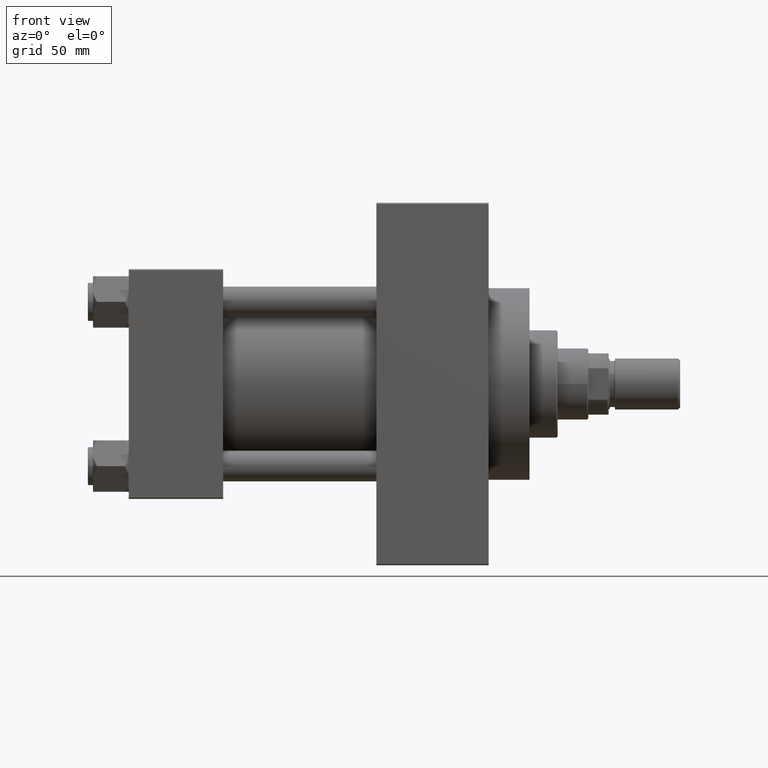
[diagram: clean part render]
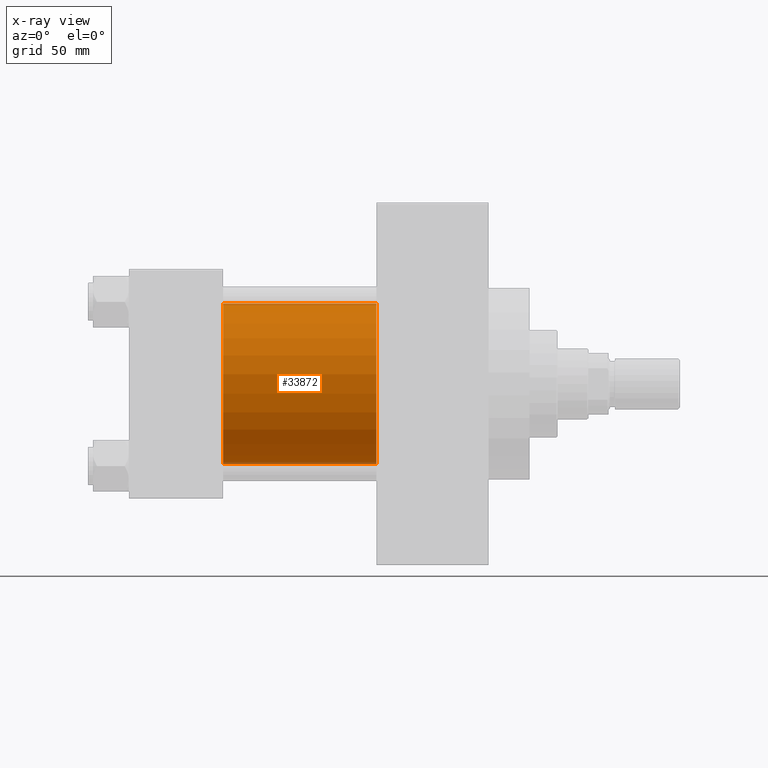
[diagram: x-ray — body ghosted, one internal face saturated and labeled with its STEP entity id]
A machine part, front view, then the same camera in x-ray: the body is ghosted and one INTERNAL B-rep face — a face not visible from any outside direction — is saturated and labeled: STEP entity #33872.
In plain terms, the highlighted cylindrical surface (partial cylindrical patch) has radius 31.5 mm, axis along (-1, -0, -0).
Its self-contained STEP definition (entity closure, byte-faithful):
#90 = CARTESIAN_POINT ( 'NONE',  ( 37.00000000000000000, 1.255552203348951850E-15, -31.50000000000000000 ) ) ;
#1311 = CIRCLE ( 'NONE', #8227, 31.50000000000000000 ) ;
#1337 = DIRECTION ( 'NONE',  ( 1.000000000000000000, 0.000000000000000000, 0.000000000000000000 ) ) ;
#1867 = EDGE_CURVE ( 'NONE', #9177, #2190, #17168, .T. ) ;
#2190 = VERTEX_POINT ( 'NONE', #31808 ) ;
#2488 = CARTESIAN_POINT ( 'NONE',  ( 97.00000000000000000, -2.602085213965210642E-15, 31.50000000000000000 ) ) ;
#2682 = DIRECTION ( 'NONE',  ( -1.000000000000000000, -0.000000000000000000, -0.000000000000000000 ) ) ;
#5655 = CARTESIAN_POINT ( 'NONE',  ( 97.00000000000000000, -2.602085213965210642E-15, 0.000000000000000000 ) ) ;
#6573 = EDGE_LOOP ( 'NONE', ( #9079, #9565, #32067, #25367 ) ) ;
#8227 = AXIS2_PLACEMENT_3D ( 'NONE', #34356, #1337, #38209 ) ;
#8315 = CYLINDRICAL_SURFACE ( 'NONE', #15411, 31.50000000000000000 ) ;
#9079 = ORIENTED_EDGE ( 'NONE', *, *, #28727, .T. ) ;
#9177 = VERTEX_POINT ( 'NONE', #2488 ) ;
#9565 = ORIENTED_EDGE ( 'NONE', *, *, #37696, .T. ) ;
#12685 = DIRECTION ( 'NONE',  ( 0.000000000000000000, 0.000000000000000000, -1.000000000000000000 ) ) ;
#13316 = CARTESIAN_POINT ( 'NONE',  ( 97.00000000000000000, -2.602085213965210642E-15, 31.50000000000000000 ) ) ;
#15411 = AXIS2_PLACEMENT_3D ( 'NONE', #5655, #45437, #16523 ) ;
#16523 = DIRECTION ( 'NONE',  ( 0.000000000000000000, 0.000000000000000000, 1.000000000000000000 ) ) ;
#17168 = LINE ( 'NONE', #13316, #39098 ) ;
#17610 = LINE ( 'NONE', #43389, #22463 ) ;
#19206 = VERTEX_POINT ( 'NONE', #30283 ) ;
#19964 = AXIS2_PLACEMENT_3D ( 'NONE', #41828, #44793, #12685 ) ;
#22463 = VECTOR ( 'NONE', #33262, 1000.000000000000000 ) ;
#23522 = EDGE_CURVE ( 'NONE', #2190, #23692, #1311, .T. ) ;
#23692 = VERTEX_POINT ( 'NONE', #90 ) ;
#24558 = CIRCLE ( 'NONE', #19964, 31.50000000000000000 ) ;
#25367 = ORIENTED_EDGE ( 'NONE', *, *, #1867, .F. ) ;
#28727 = EDGE_CURVE ( 'NONE', #9177, #19206, #24558, .T. ) ;
#30283 = CARTESIAN_POINT ( 'NONE',  ( 97.00000000000000000, 1.255552203348951850E-15, -31.50000000000000000 ) ) ;
#30983 = FACE_OUTER_BOUND ( 'NONE', #6573, .T. ) ;
#31808 = CARTESIAN_POINT ( 'NONE',  ( 37.00000000000000000, -2.602085213965210642E-15, 31.50000000000000000 ) ) ;
#32067 = ORIENTED_EDGE ( 'NONE', *, *, #23522, .F. ) ;
#33262 = DIRECTION ( 'NONE',  ( -1.000000000000000000, -0.000000000000000000, -0.000000000000000000 ) ) ;
#33872 = ADVANCED_FACE ( 'NONE', ( #30983 ), #8315, .F. ) ;
#34356 = CARTESIAN_POINT ( 'NONE',  ( 37.00000000000000000, -2.602085213965210642E-15, 0.000000000000000000 ) ) ;
#37696 = EDGE_CURVE ( 'NONE', #19206, #23692, #17610, .T. ) ;
#38209 = DIRECTION ( 'NONE',  ( 0.000000000000000000, 0.000000000000000000, -1.000000000000000000 ) ) ;
#39098 = VECTOR ( 'NONE', #2682, 1000.000000000000000 ) ;
#41828 = CARTESIAN_POINT ( 'NONE',  ( 97.00000000000000000, -2.602085213965210642E-15, 0.000000000000000000 ) ) ;
#43389 = CARTESIAN_POINT ( 'NONE',  ( 97.00000000000000000, 1.255552203348951850E-15, -31.50000000000000000 ) ) ;
#44793 = DIRECTION ( 'NONE',  ( 1.000000000000000000, 0.000000000000000000, 0.000000000000000000 ) ) ;
#45437 = DIRECTION ( 'NONE',  ( -1.000000000000000000, -0.000000000000000000, -0.000000000000000000 ) ) ;